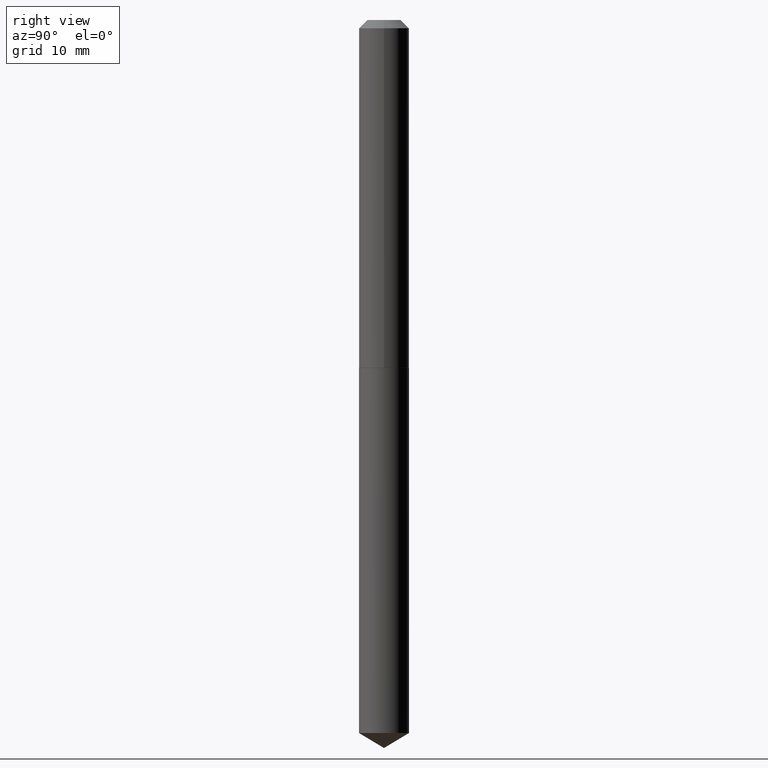
[diagram: clean part render]
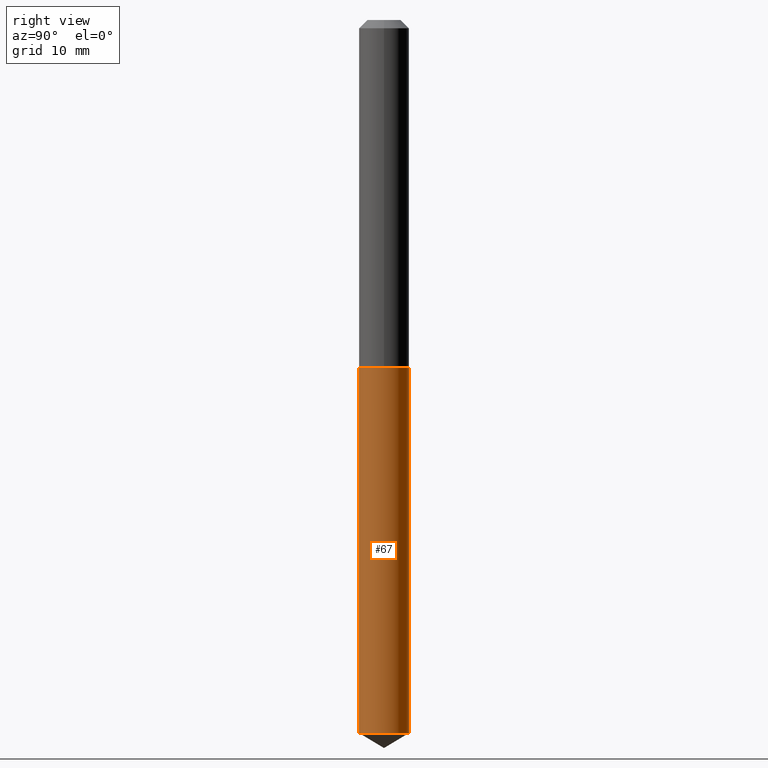
[diagram: same view with one face highlighted and labeled with its STEP entity id]
A machine part, right view. The second image highlights one B-rep face of the part: STEP entity #67.
In plain terms, the highlighted cylindrical surface (edge-blend (fillet) strip) has radius 2.4003 mm, axis along (-0, 0, 1).
Its self-contained STEP definition (entity closure, byte-faithful):
#6 = DIRECTION ( 'NONE',  ( -6.982962677686265922E-15, -1.000000000000000000, 5.781688875479922944E-15 ) ) ;
#20 = VERTEX_POINT ( 'NONE', #246 ) ;
#32 = LINE ( 'NONE', #211, #296 ) ;
#39 = DIRECTION ( 'NONE',  ( -2.445415660206723705E-29, 3.491557446909113942E-15, 1.000000000000000000 ) ) ;
#62 = EDGE_CURVE ( 'NONE', #78, #20, #32, .T. ) ;
#67 = ADVANCED_FACE ( 'NONE', ( #241 ), #92, .T. ) ;
#76 = CIRCLE ( 'NONE', #154, 0.09449999999999998679 ) ;
#78 = VERTEX_POINT ( 'NONE', #337 ) ;
#88 = DIRECTION ( 'NONE',  ( -2.445415660206723986E-29, 3.491557446909113942E-15, 1.000000000000000000 ) ) ;
#92 = CYLINDRICAL_SURFACE ( 'NONE', #163, 0.09449999999999998679 ) ;
#109 = EDGE_LOOP ( 'NONE', ( #325, #114, #363, #335 ) ) ;
#114 = ORIENTED_EDGE ( 'NONE', *, *, #62, .T. ) ;
#123 = DIRECTION ( 'NONE',  ( -6.982962677686265922E-15, -1.000000000000000000, 2.890844437739961472E-15 ) ) ;
#128 = CARTESIAN_POINT ( 'NONE',  ( -6.598899730413198687E-16, -0.09450000000000458034, -1.313999999999999613 ) ) ;
#151 = DIRECTION ( 'NONE',  ( -2.445415660206723705E-29, 3.491557446909113942E-15, 1.000000000000000000 ) ) ;
#154 = AXIS2_PLACEMENT_3D ( 'NONE', #188, #158, #242 ) ;
#158 = DIRECTION ( 'NONE',  ( -2.445415660206723986E-29, 3.491557446909113942E-15, 1.000000000000000000 ) ) ;
#163 = AXIS2_PLACEMENT_3D ( 'NONE', #311, #339, #123 ) ;
#183 = AXIS2_PLACEMENT_3D ( 'NONE', #306, #88, #6 ) ;
#188 = CARTESIAN_POINT ( 'NONE',  ( 3.213346011327269067E-29, -4.587806479239893606E-15, -1.314000000000000057 ) ) ;
#204 = VERTEX_POINT ( 'NONE', #310 ) ;
#211 = CARTESIAN_POINT ( 'NONE',  ( 6.714628852933266292E-16, 0.09449999999999539324, -1.314000000000000279 ) ) ;
#241 = FACE_OUTER_BOUND ( 'NONE', #109, .T. ) ;
#242 = DIRECTION ( 'NONE',  ( -6.982962677686265922E-15, -1.000000000000000000, 2.890844437739961472E-15 ) ) ;
#246 = CARTESIAN_POINT ( 'NONE',  ( 6.714628852933606489E-16, 0.09449999999999539324, -1.314000000000000279 ) ) ;
#262 = EDGE_CURVE ( 'NONE', #204, #78, #389, .T. ) ;
#273 = VERTEX_POINT ( 'NONE', #128 ) ;
#278 = EDGE_CURVE ( 'NONE', #204, #273, #312, .T. ) ;
#296 = VECTOR ( 'NONE', #151, 39.37007874015748143 ) ;
#306 = CARTESIAN_POINT ( 'NONE',  ( 6.586108949467517170E-29, -9.403427702638431539E-15, -2.693218671501895756 ) ) ;
#310 = CARTESIAN_POINT ( 'NONE',  ( -6.598899730412861449E-16, -0.09450000000000939593, -2.693218671501894868 ) ) ;
#311 = CARTESIAN_POINT ( 'NONE',  ( 3.213346011327269067E-29, -4.587806479239893606E-15, -1.314000000000000057 ) ) ;
#312 = LINE ( 'NONE', #342, #341 ) ;
#325 = ORIENTED_EDGE ( 'NONE', *, *, #262, .T. ) ;
#335 = ORIENTED_EDGE ( 'NONE', *, *, #278, .F. ) ;
#337 = CARTESIAN_POINT ( 'NONE',  ( 6.714628852933602544E-16, 0.09449999999999056377, -2.693218671501896200 ) ) ;
#339 = DIRECTION ( 'NONE',  ( -2.445415660206723986E-29, 3.491557446909113942E-15, 1.000000000000000000 ) ) ;
#341 = VECTOR ( 'NONE', #39, 39.37007874015748143 ) ;
#342 = CARTESIAN_POINT ( 'NONE',  ( -6.598899730413198687E-16, -0.09450000000000458034, -1.313999999999999613 ) ) ;
#358 = EDGE_CURVE ( 'NONE', #273, #20, #76, .T. ) ;
#363 = ORIENTED_EDGE ( 'NONE', *, *, #358, .F. ) ;
#389 = CIRCLE ( 'NONE', #183, 0.09449999999999998679 ) ;